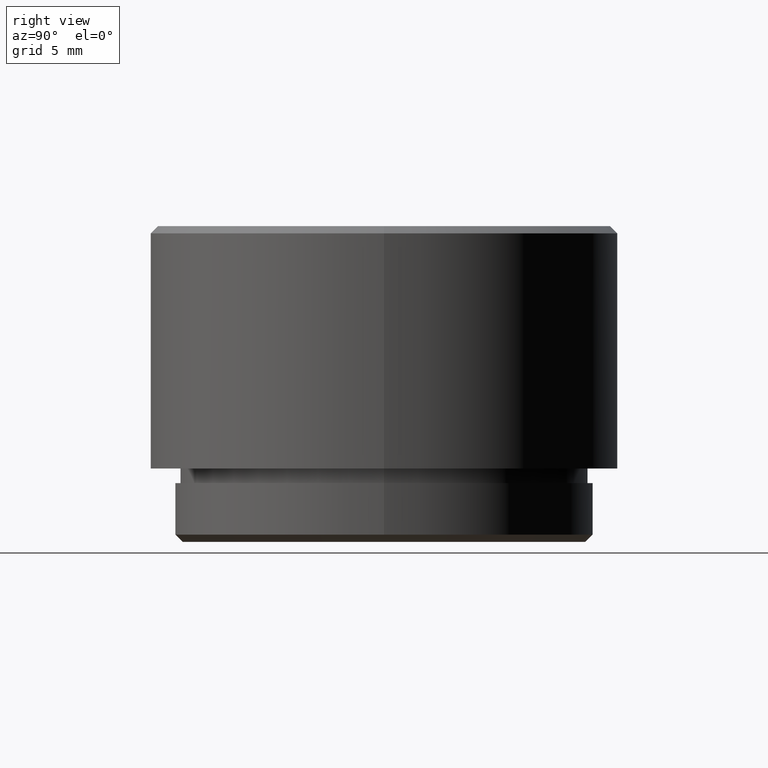
[diagram: clean part render]
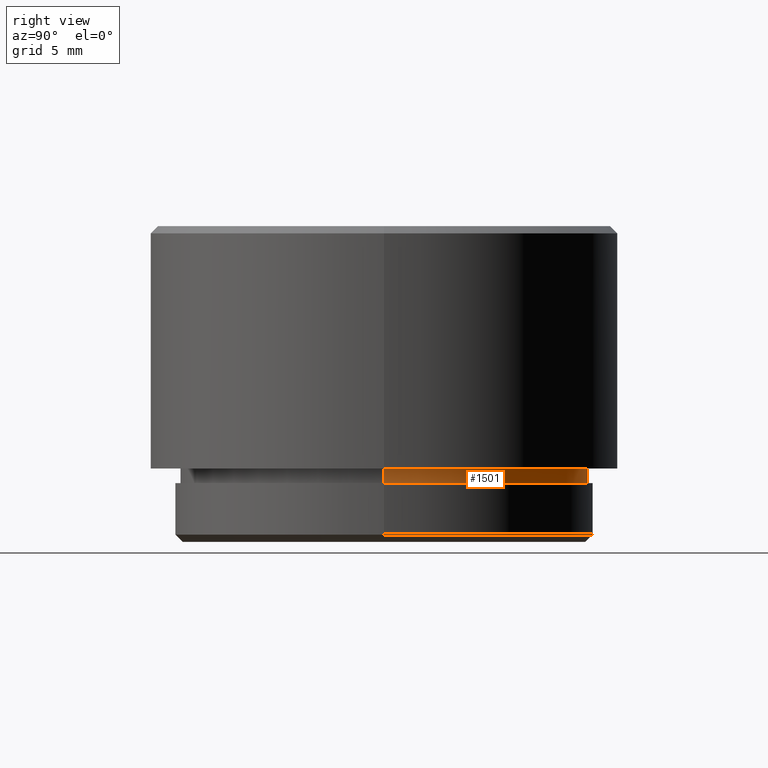
[diagram: same view with one face highlighted and labeled with its STEP entity id]
A machine part, right view. The second image highlights one B-rep face of the part: STEP entity #1501.
In plain terms, the highlighted cylindrical surface (partial cylindrical patch) has radius 13.9 mm, axis along (0, 0, 1).
Its self-contained STEP definition (entity closure, byte-faithful):
#43 = ORIENTED_EDGE ( 'NONE', *, *, #1005, .T. ) ;
#49 = DIRECTION ( 'NONE',  ( 0.000000000000000000, 0.000000000000000000, -1.000000000000000000 ) ) ;
#71 = AXIS2_PLACEMENT_3D ( 'NONE', #1366, #49, #1620 ) ;
#110 = EDGE_CURVE ( 'NONE', #1598, #575, #1149, .T. ) ;
#154 = CYLINDRICAL_SURFACE ( 'NONE', #1064, 13.90000000000000036 ) ;
#188 = EDGE_LOOP ( 'NONE', ( #1011, #949, #43, #1328 ) ) ;
#193 = EDGE_CURVE ( 'NONE', #1096, #1598, #664, .T. ) ;
#223 = VERTEX_POINT ( 'NONE', #780 ) ;
#290 = CARTESIAN_POINT ( 'NONE',  ( 0.000000000000000000, 0.000000000000000000, 4.000000000000000000 ) ) ;
#363 = DIRECTION ( 'NONE',  ( 0.000000000000000000, 0.000000000000000000, 1.000000000000000000 ) ) ;
#366 = EDGE_CURVE ( 'NONE', #1096, #223, #1205, .T. ) ;
#430 = DIRECTION ( 'NONE',  ( 1.000000000000000000, 0.000000000000000000, 0.000000000000000000 ) ) ;
#539 = CIRCLE ( 'NONE', #71, 13.90000000000000036 ) ;
#575 = VERTEX_POINT ( 'NONE', #1268 ) ;
#587 = CARTESIAN_POINT ( 'NONE',  ( 13.90000000000000036, 0.000000000000000000, 4.000000000000000000 ) ) ;
#588 = CARTESIAN_POINT ( 'NONE',  ( -13.90000000000000036, 1.702259050814821084E-15, 4.000000000000000000 ) ) ;
#638 = DIRECTION ( 'NONE',  ( 0.000000000000000000, 0.000000000000000000, -1.000000000000000000 ) ) ;
#664 = CIRCLE ( 'NONE', #940, 13.90000000000000036 ) ;
#780 = CARTESIAN_POINT ( 'NONE',  ( -13.90000000000000036, 1.702259050814821084E-15, 5.000000000000000000 ) ) ;
#940 = AXIS2_PLACEMENT_3D ( 'NONE', #1694, #638, #1032 ) ;
#949 = ORIENTED_EDGE ( 'NONE', *, *, #366, .T. ) ;
#954 = CARTESIAN_POINT ( 'NONE',  ( 13.90000000000000036, 0.000000000000000000, 4.000000000000000000 ) ) ;
#1005 = EDGE_CURVE ( 'NONE', #223, #575, #539, .T. ) ;
#1011 = ORIENTED_EDGE ( 'NONE', *, *, #193, .F. ) ;
#1032 = DIRECTION ( 'NONE',  ( -1.000000000000000000, 0.000000000000000000, 0.000000000000000000 ) ) ;
#1052 = DIRECTION ( 'NONE',  ( 0.000000000000000000, 0.000000000000000000, 1.000000000000000000 ) ) ;
#1064 = AXIS2_PLACEMENT_3D ( 'NONE', #290, #1482, #430 ) ;
#1096 = VERTEX_POINT ( 'NONE', #588 ) ;
#1149 = LINE ( 'NONE', #587, #1567 ) ;
#1199 = CARTESIAN_POINT ( 'NONE',  ( -13.90000000000000036, 1.702259050814821084E-15, 4.000000000000000000 ) ) ;
#1205 = LINE ( 'NONE', #1199, #1492 ) ;
#1268 = CARTESIAN_POINT ( 'NONE',  ( 13.90000000000000036, 0.000000000000000000, 5.000000000000000000 ) ) ;
#1328 = ORIENTED_EDGE ( 'NONE', *, *, #110, .F. ) ;
#1366 = CARTESIAN_POINT ( 'NONE',  ( 0.000000000000000000, 0.000000000000000000, 5.000000000000000000 ) ) ;
#1477 = FACE_OUTER_BOUND ( 'NONE', #188, .T. ) ;
#1482 = DIRECTION ( 'NONE',  ( 0.000000000000000000, 0.000000000000000000, 1.000000000000000000 ) ) ;
#1492 = VECTOR ( 'NONE', #1052, 1000.000000000000000 ) ;
#1501 = ADVANCED_FACE ( 'NONE', ( #1477 ), #154, .T. ) ;
#1567 = VECTOR ( 'NONE', #363, 1000.000000000000000 ) ;
#1598 = VERTEX_POINT ( 'NONE', #954 ) ;
#1620 = DIRECTION ( 'NONE',  ( -1.000000000000000000, 0.000000000000000000, 0.000000000000000000 ) ) ;
#1694 = CARTESIAN_POINT ( 'NONE',  ( 0.000000000000000000, 0.000000000000000000, 4.000000000000000000 ) ) ;